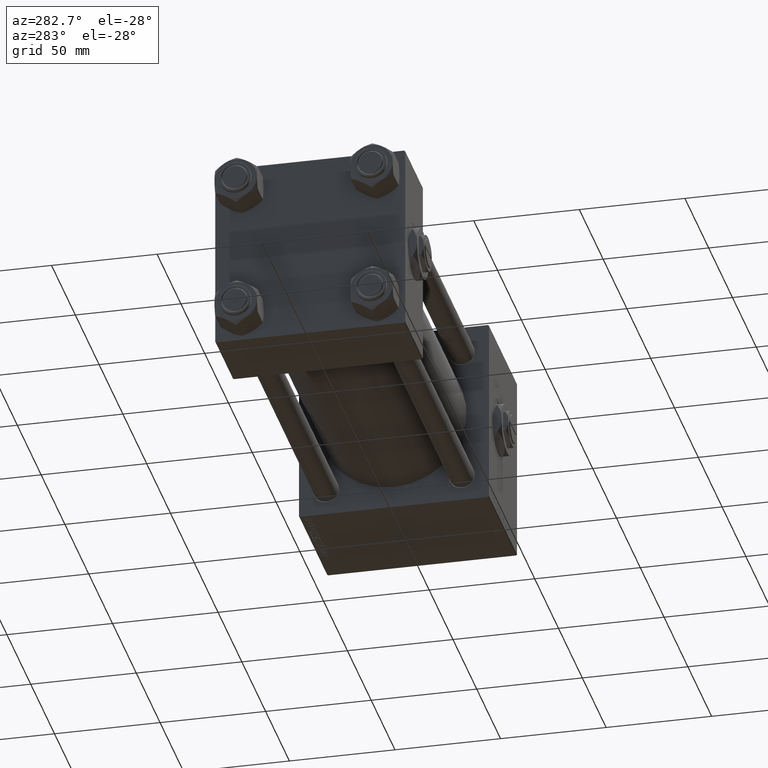
[diagram: clean part render]
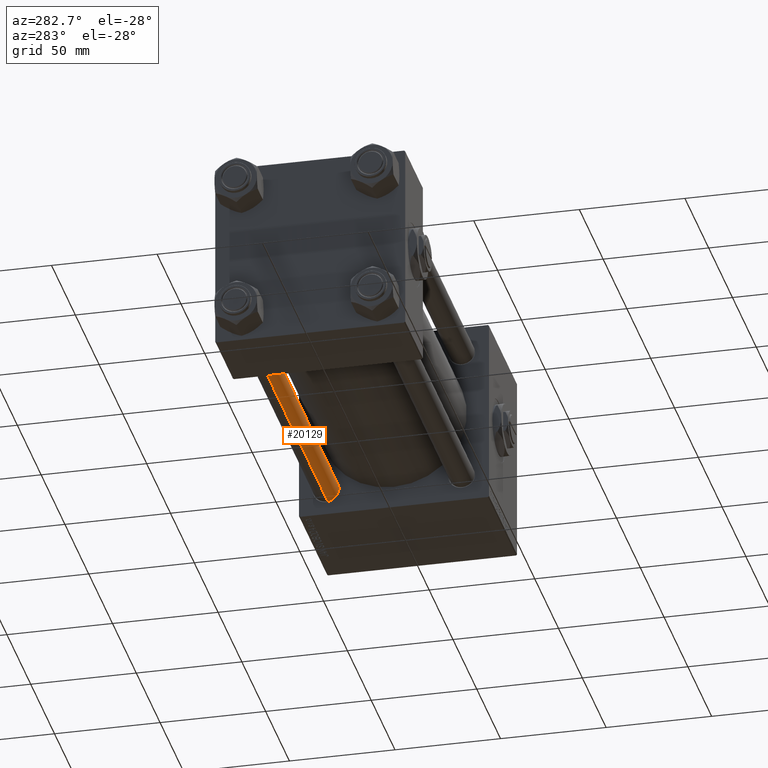
[diagram: same view with one face highlighted and labeled with its STEP entity id]
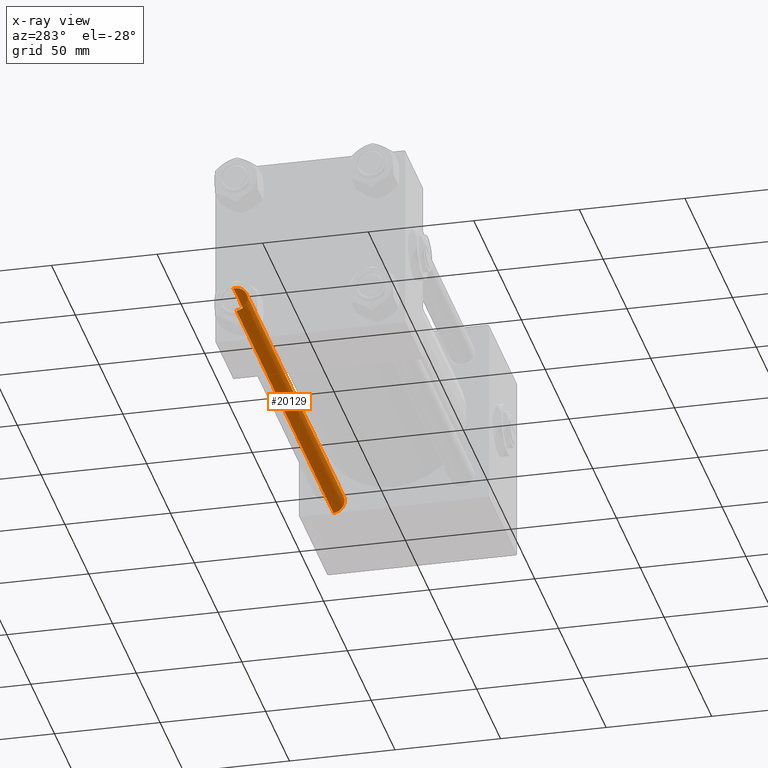
[diagram: x-ray of the same camera — body ghosted, the highlighted face saturated]
A machine part, auxiliary view. The second image highlights one B-rep face of the part: STEP entity #20129.
The next image is the same camera in x-ray: the body ghosted, the highlighted face saturated — about 0% of this face is hidden behind the body in this view.
In plain terms, the highlighted cylindrical surface (edge-blend (fillet) strip) has radius 6 mm, axis along (1, -0, 0).
Its self-contained STEP definition (entity closure, byte-faithful):
#103 = CARTESIAN_POINT ( 'NONE',  ( 6.000000000000000888, 7.347880794884119736E-16, 0.5000000000001114664 ) ) ;
#1343 = EDGE_CURVE ( 'NONE', #37098, #23096, #40453, .T. ) ;
#1863 = FACE_OUTER_BOUND ( 'NONE', #50221, .T. ) ;
#2099 = CARTESIAN_POINT ( 'NONE',  ( 0.000000000000000000, 0.000000000000000000, 0.5000000000001114664 ) ) ;
#2411 = AXIS2_PLACEMENT_3D ( 'NONE', #2099, #6651, #47037 ) ;
#3559 = CARTESIAN_POINT ( 'NONE',  ( -6.000000000000000888, 0.000000000000000000, 205.0000000000000000 ) ) ;
#3825 = DIRECTION ( 'NONE',  ( -0.000000000000000000, -0.000000000000000000, -1.000000000000000000 ) ) ;
#4494 = EDGE_CURVE ( 'NONE', #27699, #37098, #22383, .T. ) ;
#4989 = CIRCLE ( 'NONE', #2411, 6.000000000000000888 ) ;
#6651 = DIRECTION ( 'NONE',  ( -0.000000000000000000, -0.000000000000000000, 1.000000000000000000 ) ) ;
#9420 = CARTESIAN_POINT ( 'NONE',  ( 6.000000000000000888, 7.347880794884119736E-16, 205.0000000000000000 ) ) ;
#11389 = CARTESIAN_POINT ( 'NONE',  ( 0.000000000000000000, 0.000000000000000000, 204.5000000000000568 ) ) ;
#12812 = CARTESIAN_POINT ( 'NONE',  ( 6.000000000000000888, 7.347880794884119736E-16, 204.5000000000000568 ) ) ;
#12975 = ORIENTED_EDGE ( 'NONE', *, *, #4494, .T. ) ;
#13919 = CYLINDRICAL_SURFACE ( 'NONE', #23656, 6.000000000000000888 ) ;
#18187 = DIRECTION ( 'NONE',  ( -0.000000000000000000, -0.000000000000000000, -1.000000000000000000 ) ) ;
#19409 = DIRECTION ( 'NONE',  ( 1.000000000000000000, 0.000000000000000000, 0.000000000000000000 ) ) ;
#20129 = ADVANCED_FACE ( 'NONE', ( #1863 ), #13919, .T. ) ;
#20180 = ORIENTED_EDGE ( 'NONE', *, *, #1343, .T. ) ;
#22383 = CIRCLE ( 'NONE', #41264, 6.000000000000000888 ) ;
#23096 = VERTEX_POINT ( 'NONE', #24619 ) ;
#23442 = EDGE_CURVE ( 'NONE', #23096, #47150, #4989, .T. ) ;
#23656 = AXIS2_PLACEMENT_3D ( 'NONE', #26478, #18187, #41990 ) ;
#24619 = CARTESIAN_POINT ( 'NONE',  ( -6.000000000000000888, 0.000000000000000000, 0.5000000000001114664 ) ) ;
#26478 = CARTESIAN_POINT ( 'NONE',  ( 0.000000000000000000, 0.000000000000000000, 205.0000000000000000 ) ) ;
#26553 = ORIENTED_EDGE ( 'NONE', *, *, #23442, .T. ) ;
#26650 = DIRECTION ( 'NONE',  ( 0.000000000000000000, 0.000000000000000000, -1.000000000000000000 ) ) ;
#27699 = VERTEX_POINT ( 'NONE', #12812 ) ;
#29006 = CARTESIAN_POINT ( 'NONE',  ( -6.000000000000000888, 0.000000000000000000, 204.5000000000000568 ) ) ;
#33742 = DIRECTION ( 'NONE',  ( -0.000000000000000000, -0.000000000000000000, -1.000000000000000000 ) ) ;
#34407 = EDGE_CURVE ( 'NONE', #27699, #47150, #41495, .T. ) ;
#37098 = VERTEX_POINT ( 'NONE', #29006 ) ;
#37622 = ORIENTED_EDGE ( 'NONE', *, *, #34407, .F. ) ;
#40453 = LINE ( 'NONE', #3559, #47294 ) ;
#41264 = AXIS2_PLACEMENT_3D ( 'NONE', #11389, #26650, #19409 ) ;
#41495 = LINE ( 'NONE', #9420, #50937 ) ;
#41990 = DIRECTION ( 'NONE',  ( -1.000000000000000000, 0.000000000000000000, 0.000000000000000000 ) ) ;
#47037 = DIRECTION ( 'NONE',  ( 1.000000000000000000, 0.000000000000000000, 0.000000000000000000 ) ) ;
#47150 = VERTEX_POINT ( 'NONE', #103 ) ;
#47294 = VECTOR ( 'NONE', #3825, 1000.000000000000000 ) ;
#50221 = EDGE_LOOP ( 'NONE', ( #37622, #12975, #20180, #26553 ) ) ;
#50937 = VECTOR ( 'NONE', #33742, 1000.000000000000000 ) ;